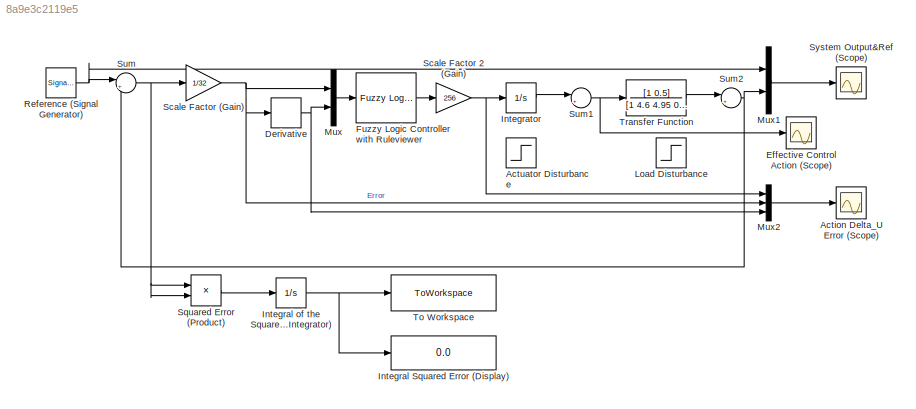
MODEL slx_8a9e3c2119e5
KIND model
CONFIG AbsTol = auto
CONFIG EnableMultiTasking = off
CONFIG FixedStep = auto
CONFIG MaxStep = auto
CONFIG MinStep = auto
CONFIG RelTol = 1e-3
CONFIG SampleTimeConstraint = Unconstrained
CONFIG Solver = VariableStepAuto
CONFIG SolverName = VariableStepAuto
CONFIG StartTime = 0.0
CONFIG StopTime = 500.0
BLOCK [Scope] Action Delta_U Error (Scope)
  Floating = off
  NumInputPorts = 1
  Ports = [1]
  ScopeSpecificationString = Simulink.scopes.TimeScopeBlockCfg('CurrentConfiguration', extmgr.ConfigurationSet(extmgr.Configuration('Core','General UI',true),extmgr.Configuration('Core','Source UI',true),extmgr.Configuration('Sources','WiredSimulink',true,'DataLoggingVariableName','ScopeData1'),extmgr.Configuration('Visuals','Time Domain',true,'SerializedDisplays',{struct('MinYLimReal','-0.29798','MaxYLimReal','1.28725','YLab...<+1455ch>
BLOCK [Step] Actuator Disturbance
  SampleTime = 0
  Time = 100
BLOCK [Derivative] Derivative 
  CoefficientInTFapproximation = Inf
BLOCK [Scope] Effective Control Action (Scope)
  Floating = off
  NumInputPorts = 1
  Ports = [1]
  ScopeSpecificationString = Simulink.scopes.TimeScopeBlockCfg('CurrentConfiguration', extmgr.ConfigurationSet(extmgr.Configuration('Core','General UI',true),extmgr.Configuration('Core','Source UI',true),extmgr.Configuration('Sources','WiredSimulink',true,'DataLoggingVariableName','ScopeData2'),extmgr.Configuration('Visuals','Time Domain',true,'SerializedDisplays',{struct('MinYLimReal','-1.22022','MaxYLimReal','2.30919','YLab...<+1418ch>
BLOCK [Reference] Fuzzy Logic Controller with Ruleviewer  REF=fuzblock/Fuzzy Logic   (lib defined in mdl_858b3b3e7478)
Controller 
with Ruleviewer
  Ports = [1, 1]
  SourceBlock = fuzblock/Fuzzy Logic \nController \nwith Ruleviewer
  SourceProductBaseCode = FL
  SourceProductName = Fuzzy Logic Toolbox
  SourceType = Fuzzy Inference System
BLOCK [Display] Integral Squared Error (Display) 
  Decimation = 1
  Ports = [1]
BLOCK [Integrator] Integral of the Squared Error (Integrator)
  Ports = [1, 1]
BLOCK [Integrator] Integrator 
  Ports = [1, 1]
BLOCK [Step] Load Disturbance
  SampleTime = 0
  Time = 100
BLOCK [Mux] Mux
  DisplayOption = bar
  Inputs = 2
  Ports = [2, 1]
BLOCK [Mux] Mux1
  DisplayOption = bar
  Inputs = 2
  Ports = [2, 1]
BLOCK [Mux] Mux2
  DisplayOption = bar
  Inputs = 3
  Ports = [3, 1]
BLOCK [SignalGenerator] Reference (Signal Generator)
  Frequency = 0.05
  Ports = [0, 1]
  Units = rad/sec
  WaveForm = sawtooth
BLOCK [Gain] Scale Factor (Gain)
  Gain = 1/32
  OutDataTypeStr = Inherit: Inherit via internal rule
  ParamDataTypeStr = Inherit: Inherit via internal rule
  SaturateOnIntegerOverflow = off
BLOCK [Gain] Scale Factor 2 (Gain)
  Gain = 256
  OutDataTypeStr = Inherit: Inherit via internal rule
  ParamDataTypeStr = Inherit: Inherit via internal rule
  SaturateOnIntegerOverflow = off
BLOCK [Product] Squared Error (Product)
  InputSameDT = off
  OutDataTypeStr = Inherit: Inherit via internal rule
  Ports = [2, 1]
  RndMeth = Floor
  SaturateOnIntegerOverflow = off
BLOCK [Sum] Sum
  IconShape = round
  InputSameDT = off
  Inputs = |+-
  OutDataTypeStr = Inherit: Inherit via internal rule
  Ports = [2, 1]
  SaturateOnIntegerOverflow = off
BLOCK [Sum] Sum1
  IconShape = round
  InputSameDT = off
  Inputs = |+-
  OutDataTypeStr = Inherit: Inherit via internal rule
  Ports = [2, 1]
  SaturateOnIntegerOverflow = off
BLOCK [Sum] Sum2
  IconShape = round
  InputSameDT = off
  Inputs = |+-
  OutDataTypeStr = Inherit: Inherit via internal rule
  Ports = [2, 1]
  SaturateOnIntegerOverflow = off
BLOCK [Scope] System Output&Ref (Scope)
  Floating = off
  NumInputPorts = 1
  Ports = [1]
  ScopeSpecificationString = Simulink.scopes.TimeScopeBlockCfg('CurrentConfiguration', extmgr.ConfigurationSet(extmgr.Configuration('Core','General UI',true),extmgr.Configuration('Core','Source UI',true),extmgr.Configuration('Sources','WiredSimulink',true),extmgr.Configuration('Visuals','Time Domain',true,'SerializedDisplays',{struct('MinYLimReal','-2.29676','MaxYLimReal','2.1478','YLabelReal','','MinYLimMag','0.00000','MaxYL...<+1458ch>
BLOCK [ToWorkspace] To Workspace 
  FixptAsFi = on
  MaxDataPoints = inf
  Ports = [1]
  SampleTime = -1
  SaveFormat = Timeseries
  VariableName = Performance
BLOCK [TransferFcn] Transfer Function 
  Denominator = [1 4.6 4.95 0.4]
  Numerator = [1 0.5]
NET Derivative :1 -> Mux2:3, Mux:2
LINE Fuzzy Logic Controller with Ruleviewer:1 -> Scale Factor 2 (Gain):1
NET Integral of the Squared Error (Integrator):1 -> Integral Squared Error (Display) :1, To Workspace :1
LINE Integrator :1 -> Sum1:1
LINE Mux1:1 -> System Output&Ref (Scope):1
LINE Mux2:1 -> Action Delta_U Error (Scope):1
LINE Mux:1 -> Fuzzy Logic Controller with Ruleviewer:1
NET Reference (Signal Generator):1 -> Mux1:1, Sum:1
NET Scale Factor (Gain):1 -> Derivative :1, Mux2:2, Mux:1
NET Scale Factor 2 (Gain):1 -> Integrator :1, Mux2:1
LINE Squared Error (Product):1 -> Integral of the Squared Error (Integrator):1
NET Sum1:1 -> Effective Control Action (Scope):1, Transfer Function :1
NET Sum2:1 -> Mux1:2, Sum:2
NET Sum:1 -> Scale Factor (Gain):1, Squared Error (Product):1, Squared Error (Product):2
LINE Transfer Function :1 -> Sum2:1
note: NET lines group one-source signal fan-out (src -> all destinations, sorted); 1:1 wires keep LINE
